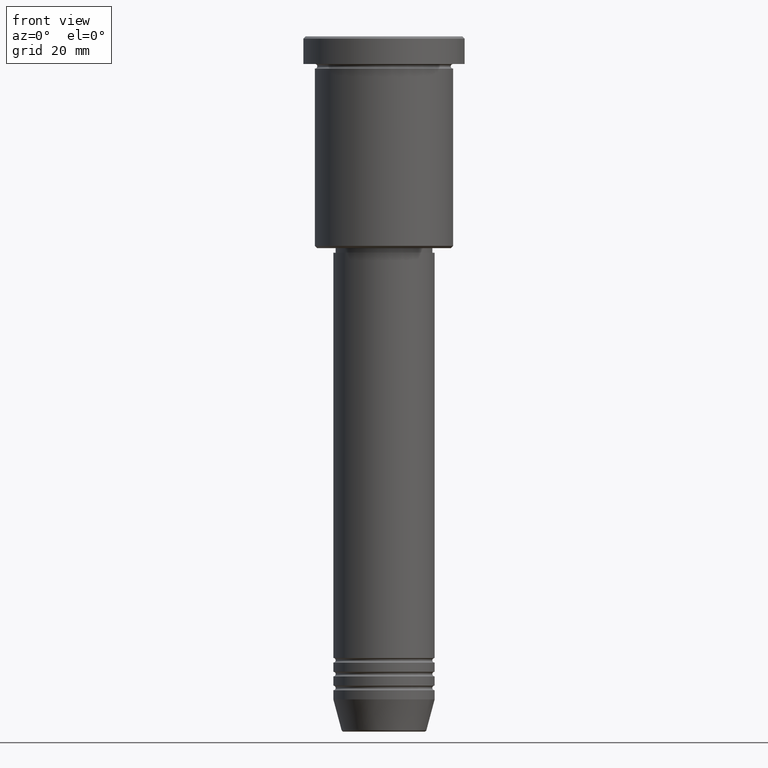
[diagram: clean part render]
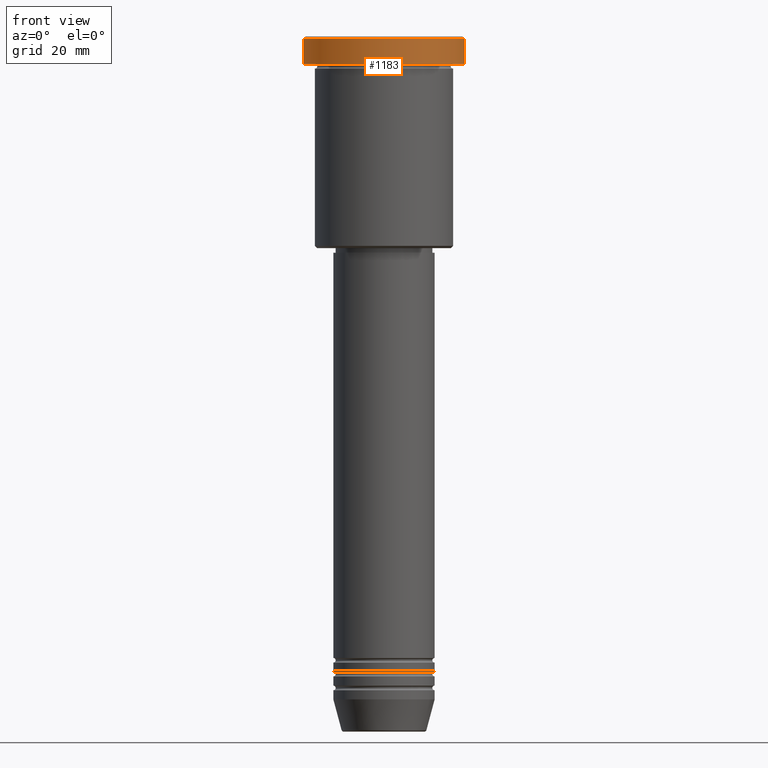
[diagram: same view with one face highlighted and labeled with its STEP entity id]
A machine part, front view. The second image highlights one B-rep face of the part: STEP entity #1183.
In plain terms, the highlighted cylindrical surface (partial cylindrical patch) has radius 17.5 mm, axis along (-0, -0, 1).
Its self-contained STEP definition (entity closure, byte-faithful):
#50 = VECTOR ( 'NONE', #439, 1000.000000000000000 ) ;
#88 = FACE_OUTER_BOUND ( 'NONE', #940, .T. ) ;
#102 = AXIS2_PLACEMENT_3D ( 'NONE', #964, #1046, #610 ) ;
#106 = EDGE_CURVE ( 'NONE', #617, #184, #281, .T. ) ;
#107 = CARTESIAN_POINT ( 'NONE',  ( 17.50000000000000000, 0.000000000000000000, 0.000000000000000000 ) ) ;
#123 = CIRCLE ( 'NONE', #193, 17.50000000000000000 ) ;
#135 = DIRECTION ( 'NONE',  ( 1.000000000000000000, 0.000000000000000000, 0.000000000000000000 ) ) ;
#184 = VERTEX_POINT ( 'NONE', #915 ) ;
#193 = AXIS2_PLACEMENT_3D ( 'NONE', #683, #1034, #135 ) ;
#229 = EDGE_CURVE ( 'NONE', #184, #1037, #123, .T. ) ;
#254 = LINE ( 'NONE', #450, #50 ) ;
#268 = CARTESIAN_POINT ( 'NONE',  ( -17.50000000000000000, 2.143131898507868248E-15, -5.999999999999995559 ) ) ;
#275 = DIRECTION ( 'NONE',  ( -0.000000000000000000, -0.000000000000000000, 1.000000000000000000 ) ) ;
#281 = LINE ( 'NONE', #107, #409 ) ;
#287 = ORIENTED_EDGE ( 'NONE', *, *, #843, .F. ) ;
#409 = VECTOR ( 'NONE', #824, 1000.000000000000000 ) ;
#439 = DIRECTION ( 'NONE',  ( -0.000000000000000000, -0.000000000000000000, 1.000000000000000000 ) ) ;
#443 = CARTESIAN_POINT ( 'NONE',  ( 17.50000000000000000, 0.000000000000000000, -5.999999999999995559 ) ) ;
#450 = CARTESIAN_POINT ( 'NONE',  ( -17.50000000000000000, 2.143131898507868248E-15, 0.000000000000000000 ) ) ;
#454 = CARTESIAN_POINT ( 'NONE',  ( 0.000000000000000000, 0.000000000000000000, 0.000000000000000000 ) ) ;
#469 = AXIS2_PLACEMENT_3D ( 'NONE', #454, #275, #638 ) ;
#481 = EDGE_CURVE ( 'NONE', #667, #617, #488, .T. ) ;
#488 = CIRCLE ( 'NONE', #102, 17.50000000000000000 ) ;
#610 = DIRECTION ( 'NONE',  ( 1.000000000000000000, 0.000000000000000000, 0.000000000000000000 ) ) ;
#617 = VERTEX_POINT ( 'NONE', #443 ) ;
#638 = DIRECTION ( 'NONE',  ( 1.000000000000000000, 0.000000000000000000, 0.000000000000000000 ) ) ;
#667 = VERTEX_POINT ( 'NONE', #268 ) ;
#683 = CARTESIAN_POINT ( 'NONE',  ( 0.000000000000000000, 0.000000000000000000, -0.4999999999999866773 ) ) ;
#693 = CARTESIAN_POINT ( 'NONE',  ( -17.50000000000000000, 2.143131898507868248E-15, -0.4999999999999866773 ) ) ;
#712 = ORIENTED_EDGE ( 'NONE', *, *, #481, .T. ) ;
#723 = ORIENTED_EDGE ( 'NONE', *, *, #106, .T. ) ;
#824 = DIRECTION ( 'NONE',  ( -0.000000000000000000, -0.000000000000000000, 1.000000000000000000 ) ) ;
#843 = EDGE_CURVE ( 'NONE', #667, #1037, #254, .T. ) ;
#915 = CARTESIAN_POINT ( 'NONE',  ( 17.50000000000000000, 0.000000000000000000, -0.4999999999999866773 ) ) ;
#918 = CYLINDRICAL_SURFACE ( 'NONE', #469, 17.50000000000000000 ) ;
#940 = EDGE_LOOP ( 'NONE', ( #287, #712, #723, #1020 ) ) ;
#964 = CARTESIAN_POINT ( 'NONE',  ( 0.000000000000000000, 0.000000000000000000, -5.999999999999995559 ) ) ;
#1020 = ORIENTED_EDGE ( 'NONE', *, *, #229, .T. ) ;
#1034 = DIRECTION ( 'NONE',  ( 0.000000000000000000, 0.000000000000000000, -1.000000000000000000 ) ) ;
#1037 = VERTEX_POINT ( 'NONE', #693 ) ;
#1046 = DIRECTION ( 'NONE',  ( -0.000000000000000000, -0.000000000000000000, 1.000000000000000000 ) ) ;
#1183 = ADVANCED_FACE ( 'NONE', ( #88 ), #918, .T. ) ;